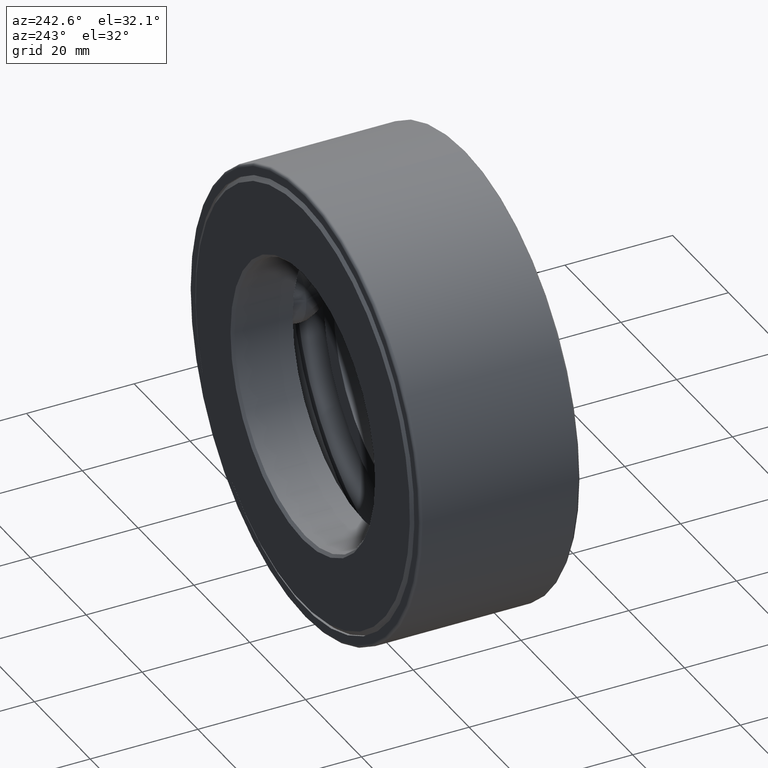
[diagram: clean part render]
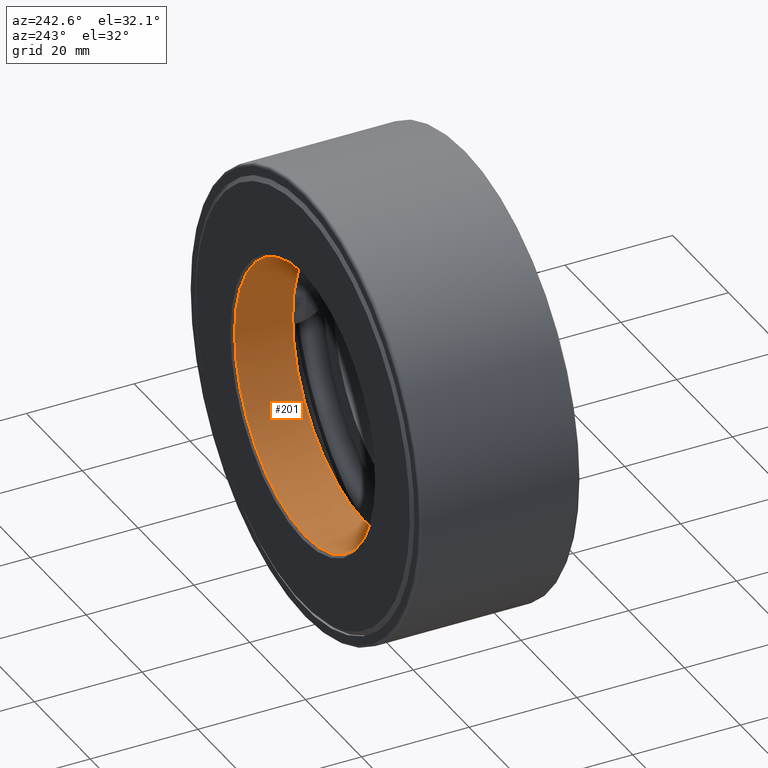
[diagram: same view with one face highlighted and labeled with its STEP entity id]
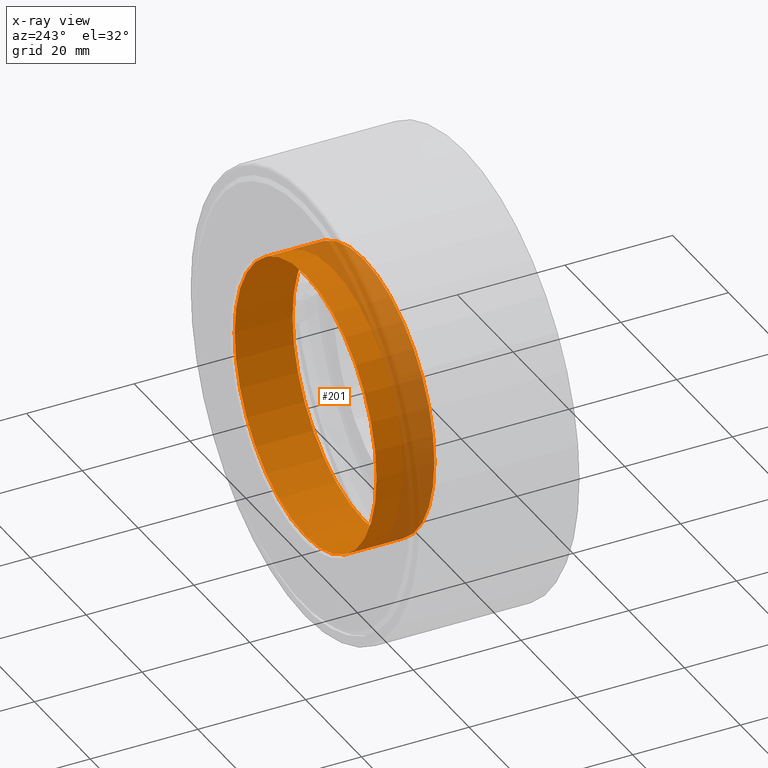
[diagram: x-ray of the same camera — body ghosted, the highlighted face saturated]
A machine part, auxiliary view. The second image highlights one B-rep face of the part: STEP entity #201.
The next image is the same camera in x-ray: the body ghosted, the highlighted face saturated — about 28% of this face is hidden behind the body in this view.
In plain terms, the highlighted cylindrical surface (bore or boss wall) has radius 25.4 mm, axis along (-0, 1, -0).
Its self-contained STEP definition (entity closure, byte-faithful):
#14 = EDGE_LOOP ( 'NONE', ( #555 ) ) ;
#31 = CARTESIAN_POINT ( 'NONE',  ( 0.0000000000000000000, 1.167499999999999500, 0.0000000000000000000 ) ) ;
#61 = CARTESIAN_POINT ( 'NONE',  ( 0.0000000000000000000, 0.7437499999999998000, 0.0000000000000000000 ) ) ;
#93 = AXIS2_PLACEMENT_3D ( 'NONE', #61, #380, #298 ) ;
#99 = EDGE_CURVE ( 'NONE', #360, #360, #310, .T. ) ;
#145 = FACE_OUTER_BOUND ( 'NONE', #456, .T. ) ;
#170 = CIRCLE ( 'NONE', #275, 1.000000000000000200 ) ;
#201 = ADVANCED_FACE ( 'NONE', ( #204, #145 ), #268, .F. ) ;
#204 = FACE_OUTER_BOUND ( 'NONE', #14, .T. ) ;
#223 = ORIENTED_EDGE ( 'NONE', *, *, #99, .F. ) ;
#235 = EDGE_CURVE ( 'NONE', #297, #297, #170, .T. ) ;
#268 = CYLINDRICAL_SURFACE ( 'NONE', #337, 1.000000000000000200 ) ;
#275 = AXIS2_PLACEMENT_3D ( 'NONE', #31, #540, #545 ) ;
#276 = CARTESIAN_POINT ( 'NONE',  ( 0.0000000000000000000, 0.7437499999999998000, 1.000000000000000200 ) ) ;
#297 = VERTEX_POINT ( 'NONE', #546 ) ;
#298 = DIRECTION ( 'NONE',  ( 0.0000000000000000000, 0.0000000000000000000, 1.000000000000000000 ) ) ;
#302 = DIRECTION ( 'NONE',  ( 0.0000000000000000000, 0.0000000000000000000, 1.000000000000000000 ) ) ;
#310 = CIRCLE ( 'NONE', #93, 1.000000000000000200 ) ;
#337 = AXIS2_PLACEMENT_3D ( 'NONE', #536, #472, #302 ) ;
#360 = VERTEX_POINT ( 'NONE', #276 ) ;
#380 = DIRECTION ( 'NONE',  ( -0.0000000000000000000, 1.000000000000000000, -0.0000000000000000000 ) ) ;
#456 = EDGE_LOOP ( 'NONE', ( #223 ) ) ;
#472 = DIRECTION ( 'NONE',  ( -0.0000000000000000000, 1.000000000000000000, -0.0000000000000000000 ) ) ;
#536 = CARTESIAN_POINT ( 'NONE',  ( 0.0000000000000000000, 0.0000000000000000000, 0.0000000000000000000 ) ) ;
#540 = DIRECTION ( 'NONE',  ( -0.0000000000000000000, 1.000000000000000000, -0.0000000000000000000 ) ) ;
#545 = DIRECTION ( 'NONE',  ( 0.0000000000000000000, 0.0000000000000000000, 1.000000000000000000 ) ) ;
#546 = CARTESIAN_POINT ( 'NONE',  ( 0.0000000000000000000, 1.167499999999999500, 1.000000000000000200 ) ) ;
#555 = ORIENTED_EDGE ( 'NONE', *, *, #235, .T. ) ;